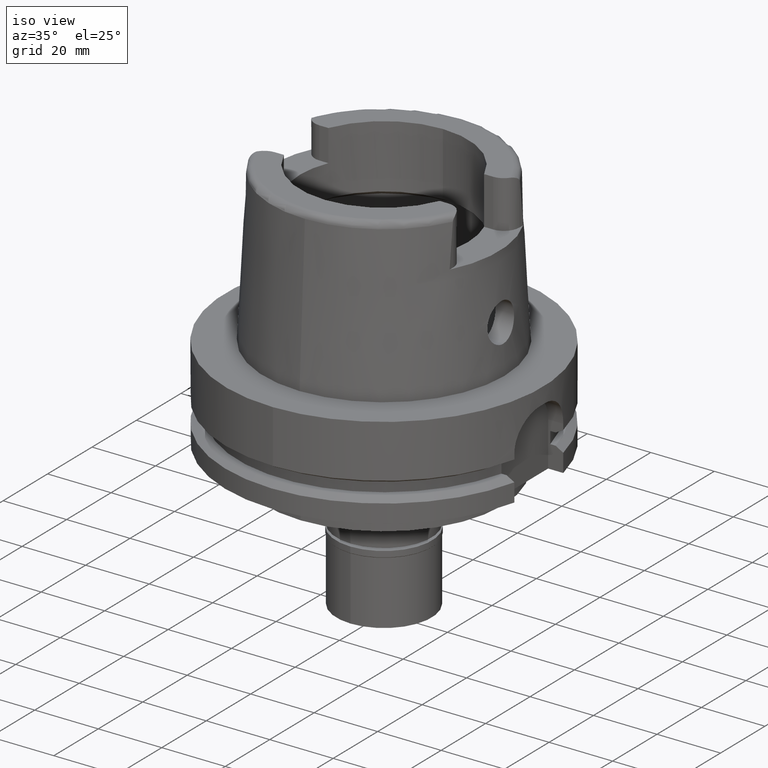
[diagram: clean part render]
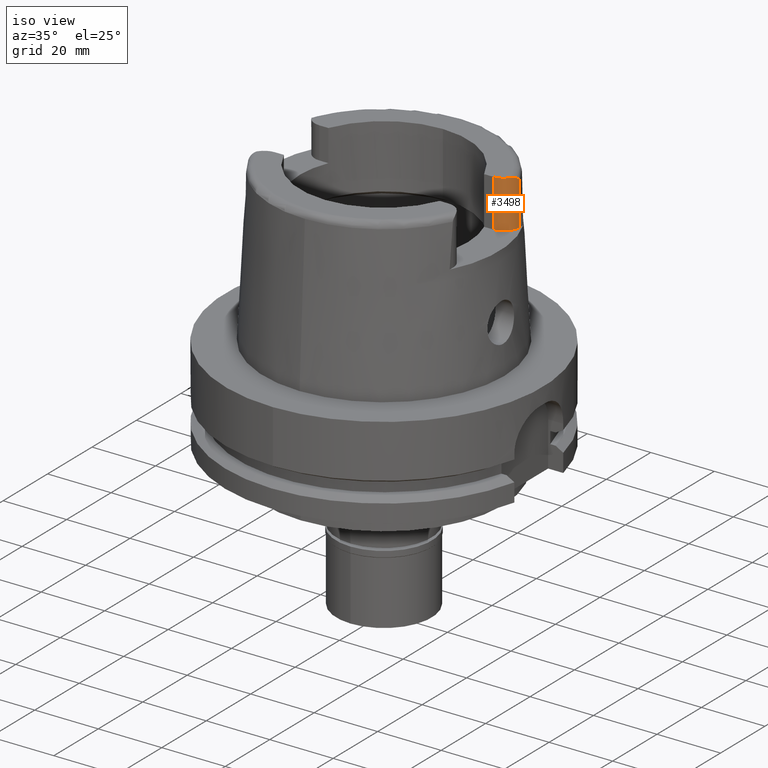
[diagram: same view with one face highlighted and labeled with its STEP entity id]
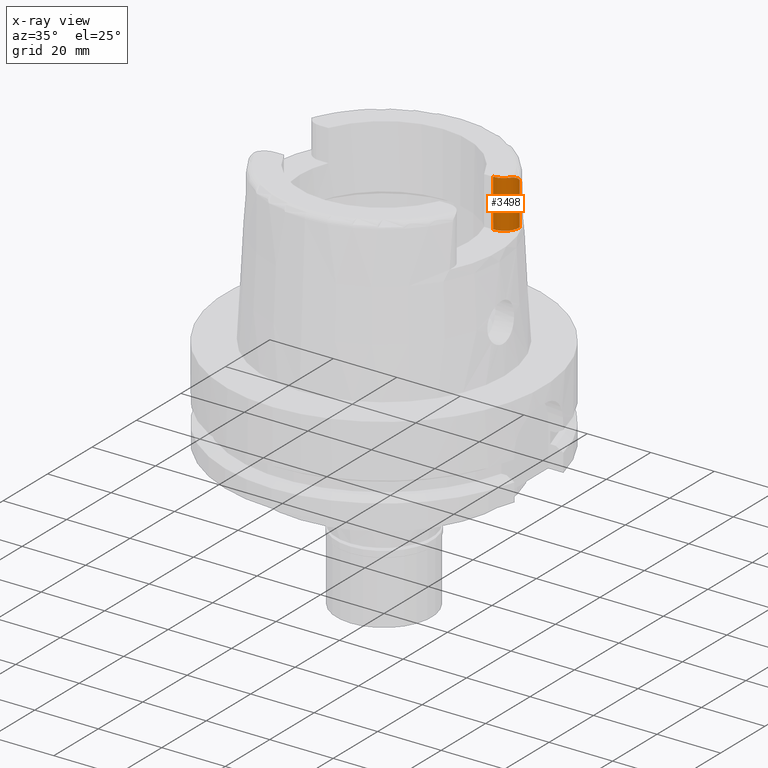
[diagram: x-ray of the same camera — body ghosted, the highlighted face saturated]
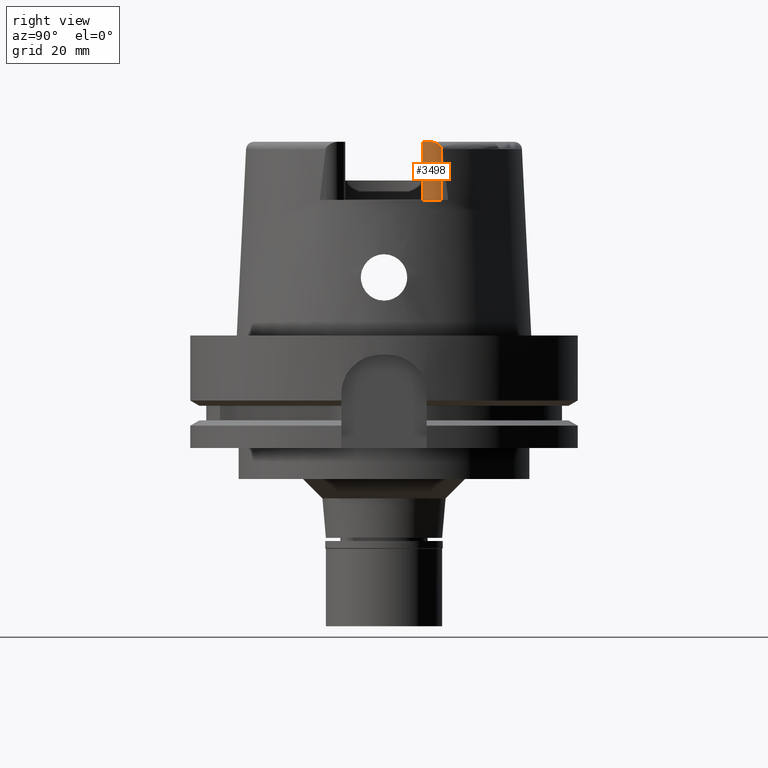
[diagram: same view with one face highlighted and labeled with its STEP entity id]
A machine part, iso view. The second image highlights one B-rep face of the part: STEP entity #3498.
The next image is the same camera in x-ray: the body ghosted, the highlighted face saturated — about 0% of this face is hidden behind the body in this view.
A second angle (right view) of the same face is appended — the face is thin or edge-on in the first view.
In plain terms, the highlighted cylindrical surface (edge-blend (fillet) strip) has radius 4.88 mm, axis along (0, 0, 1).
Its self-contained STEP definition (entity closure, byte-faithful):
#10 = CIRCLE ( 'NONE', #812, 4.879999999999999005 ) ;
#102 = CARTESIAN_POINT ( 'NONE',  ( 32.22073197824234825, 14.34663102799839862, 49.10059584251776954 ) ) ;
#204 = CARTESIAN_POINT ( 'NONE',  ( 32.17996536991925893, 14.06412821586896911, 49.29925825160065500 ) ) ;
#239 = CARTESIAN_POINT ( 'NONE',  ( 31.52202340203878705, 12.30932364368244691, 50.00000000000000000 ) ) ;
#261 = CARTESIAN_POINT ( 'NONE',  ( 31.83934535690826451, 12.92899800443668923, 49.84818950745972899 ) ) ;
#281 = CARTESIAN_POINT ( 'NONE',  ( 32.25000000000000000, 14.89000000000000057, 35.00000000000000000 ) ) ;
#366 = CIRCLE ( 'NONE', #464, 4.880000000000001670 ) ;
#464 = AXIS2_PLACEMENT_3D ( 'NONE', #3365, #5110, #1228 ) ;
#500 = VERTEX_POINT ( 'NONE', #4302 ) ;
#595 = CYLINDRICAL_SURFACE ( 'NONE', #1133, 4.880000000000002558 ) ;
#624 = DIRECTION ( 'NONE',  ( 2.098162679624000168E-14, 0.0000000000000000000, -1.000000000000000000 ) ) ;
#636 = ORIENTED_EDGE ( 'NONE', *, *, #3459, .F. ) ;
#637 = CARTESIAN_POINT ( 'NONE',  ( 32.24918104296722987, 14.77414154311812489, 48.70183324870226471 ) ) ;
#774 = CARTESIAN_POINT ( 'NONE',  ( 31.93099837877237590, 13.15273983748169329, 49.76863317394997921 ) ) ;
#812 = AXIS2_PLACEMENT_3D ( 'NONE', #2272, #5303, #942 ) ;
#836 = VERTEX_POINT ( 'NONE', #3530 ) ;
#914 = EDGE_CURVE ( 'NONE', #500, #3971, #3218, .T. ) ;
#942 = DIRECTION ( 'NONE',  ( 0.0000000000000000000, -1.000000000000000000, 0.0000000000000000000 ) ) ;
#1008 = CARTESIAN_POINT ( 'NONE',  ( 32.12008405835115354, 13.77144351166837666, 49.47521879214509255 ) ) ;
#1086 = CARTESIAN_POINT ( 'NONE',  ( 32.16941230172443511, 14.00460540661360120, 49.33743941536270938 ) ) ;
#1133 = AXIS2_PLACEMENT_3D ( 'NONE', #4846, #4036, #1808 ) ;
#1170 = CARTESIAN_POINT ( 'NONE',  ( 31.67568229352726306, 12.57174032473989911, 49.95662557355992561 ) ) ;
#1212 = VECTOR ( 'NONE', #624, 1000.000000000000000 ) ;
#1228 = DIRECTION ( 'NONE',  ( 0.8163632566568778115, -0.5775387720149849358, 0.0000000000000000000 ) ) ;
#1808 = DIRECTION ( 'NONE',  ( 1.000000000000000000, 0.0000000000000000000, 0.0000000000000000000 ) ) ;
#1824 = CARTESIAN_POINT ( 'NONE',  ( 32.15128516016157079, 13.91292133161952904, 49.39341839596030326 ) ) ;
#1834 = LINE ( 'NONE', #3158, #2396 ) ;
#1854 = CARTESIAN_POINT ( 'NONE',  ( 32.23895775506618833, 14.56122415943860027, 48.91730878227249235 ) ) ;
#1972 = ORIENTED_EDGE ( 'NONE', *, *, #4973, .T. ) ;
#2053 = CARTESIAN_POINT ( 'NONE',  ( 32.07996662474188554, 13.60353216533802723, 49.56830449580417053 ) ) ;
#2077 = CARTESIAN_POINT ( 'NONE',  ( 32.03608607600111213, 13.45223189073393222, 49.64253662309140935 ) ) ;
#2272 = CARTESIAN_POINT ( 'NONE',  ( 27.36999999999999744, 14.89000000000000057, 35.00000000000000000 ) ) ;
#2277 = CARTESIAN_POINT ( 'NONE',  ( 32.24294074546661903, 14.62425352872380913, 48.85843066340613206 ) ) ;
#2357 = CARTESIAN_POINT ( 'NONE',  ( 32.23670036792930205, 14.52873866628639199, 48.94676985432744232 ) ) ;
#2385 = CARTESIAN_POINT ( 'NONE',  ( 32.23113818881066095, 14.46116576704210033, 49.00499248621228787 ) ) ;
#2396 = VECTOR ( 'NONE', #4785, 1000.000000000000000 ) ;
#2756 = CARTESIAN_POINT ( 'NONE',  ( 32.20762153862474975, 14.23766411748314020, 49.18212923022363725 ) ) ;
#2950 = CARTESIAN_POINT ( 'NONE',  ( 31.95871334114621476, 13.22735332257414953, 49.73897301154498507 ) ) ;
#3151 = ORIENTED_EDGE ( 'NONE', *, *, #914, .F. ) ;
#3158 = CARTESIAN_POINT ( 'NONE',  ( 27.36999999999999744, 10.00999999999999979, 35.00000000000000000 ) ) ;
#3173 = CARTESIAN_POINT ( 'NONE',  ( 32.24488857474796788, 14.66368364660919710, 48.81923728448659006 ) ) ;
#3218 = LINE ( 'NONE', #5011, #1212 ) ;
#3289 = VERTEX_POINT ( 'NONE', #3390 ) ;
#3312 = CARTESIAN_POINT ( 'NONE',  ( 31.35385269249000473, 12.07161079256999869, 50.00000000000000000 ) ) ;
#3365 = CARTESIAN_POINT ( 'NONE',  ( 27.36999999999999744, 14.89000000000000057, 50.00000000000000000 ) ) ;
#3390 = CARTESIAN_POINT ( 'NONE',  ( 31.35385269249000473, 12.07161079256999869, 50.00000000000000000 ) ) ;
#3449 = B_SPLINE_CURVE_WITH_KNOTS ( 'NONE', 3,
 ( #4510, #4887, #637, #3173, #2277, #1854, #2357, #4968, #4076, #2385, #102, #2756, #204, #1086, #1824, #3541, #3576, #5309, #1008, #5496, #2053, #2077, #2950, #774, #4681, #261, #1170, #239, #3312 ),
 .UNSPECIFIED., .F., .F.,
 ( 4, 2, 2, 1, 2, 2, 2, 2, 1, 1, 2, 2, 2, 2, 2, 4 ),
 ( 0.0000000000000000000, 0.1249999999999960032, 0.1874999999999910627, 0.2187499999999878986, 0.2343749999999878431, 0.2499999999999877875, 0.3749999999999910072, 0.4374999999999919509, 0.4687499999999915068, 0.4843749999999921174, 0.4921874999999918399, 0.4999999999999915623, 0.6249999999999955591, 0.6874999999999965583, 0.7499999999999975575, 1.000000000000000000 ),
 .UNSPECIFIED. ) ;
#3459 = EDGE_CURVE ( 'NONE', #836, #4746, #1834, .T. ) ;
#3498 = ADVANCED_FACE ( 'NONE', ( #4815 ), #595, .T. ) ;
#3530 = CARTESIAN_POINT ( 'NONE',  ( 27.36999999999999744, 10.00999999999999979, 35.00000000000000000 ) ) ;
#3541 = CARTESIAN_POINT ( 'NONE',  ( 32.14164700422637111, 13.86647972674404450, 49.42108469499771672 ) ) ;
#3576 = CARTESIAN_POINT ( 'NONE',  ( 32.12933025592487724, 13.81127851622978042, 49.45279645916738076 ) ) ;
#3628 = ORIENTED_EDGE ( 'NONE', *, *, #3889, .T. ) ;
#3775 = EDGE_CURVE ( 'NONE', #500, #3289, #3449, .T. ) ;
#3889 = EDGE_CURVE ( 'NONE', #3289, #4746, #366, .T. ) ;
#3971 = VERTEX_POINT ( 'NONE', #281 ) ;
#4036 = DIRECTION ( 'NONE',  ( 0.0000000000000000000, 0.0000000000000000000, 1.000000000000000000 ) ) ;
#4076 = CARTESIAN_POINT ( 'NONE',  ( 32.23206681528385786, 14.47186270654503559, 48.99593401018076833 ) ) ;
#4302 = CARTESIAN_POINT ( 'NONE',  ( 32.25000000000000000, 14.89000000000000057, 48.54599893821999501 ) ) ;
#4357 = ORIENTED_EDGE ( 'NONE', *, *, #3775, .T. ) ;
#4510 = CARTESIAN_POINT ( 'NONE',  ( 32.25000000000000000, 14.89000000000000057, 48.54599893821999501 ) ) ;
#4681 = CARTESIAN_POINT ( 'NONE',  ( 31.87170458715581134, 13.00441391248832979, 49.82298289793417467 ) ) ;
#4740 = CARTESIAN_POINT ( 'NONE',  ( 27.36999999999999744, 10.00999999999999979, 50.00000000000000000 ) ) ;
#4746 = VERTEX_POINT ( 'NONE', #4740 ) ;
#4785 = DIRECTION ( 'NONE',  ( 0.0000000000000000000, 0.0000000000000000000, 1.000000000000000000 ) ) ;
#4803 = EDGE_LOOP ( 'NONE', ( #636, #1972, #3151, #4357, #3628 ) ) ;
#4815 = FACE_OUTER_BOUND ( 'NONE', #4803, .T. ) ;
#4846 = CARTESIAN_POINT ( 'NONE',  ( 27.36999999999999744, 14.89000000000000057, 50.00000000000000000 ) ) ;
#4887 = CARTESIAN_POINT ( 'NONE',  ( 32.24999999999999289, 14.83733103951784749, 48.62379869281165412 ) ) ;
#4968 = CARTESIAN_POINT ( 'NONE',  ( 32.23398537942118480, 14.49480543875262661, 48.97626394531509675 ) ) ;
#4973 = EDGE_CURVE ( 'NONE', #836, #3971, #10, .T. ) ;
#5011 = CARTESIAN_POINT ( 'NONE',  ( 32.25000000000000000, 14.89000000000000057, 48.54599893821999501 ) ) ;
#5110 = DIRECTION ( 'NONE',  ( 0.0000000000000000000, 0.0000000000000000000, -1.000000000000000000 ) ) ;
#5303 = DIRECTION ( 'NONE',  ( 0.0000000000000000000, 0.0000000000000000000, 1.000000000000000000 ) ) ;
#5309 = CARTESIAN_POINT ( 'NONE',  ( 32.12381462593459247, 13.78740593088808097, 49.46626601851706084 ) ) ;
#5496 = CARTESIAN_POINT ( 'NONE',  ( 32.11854200406919091, 13.76490263093765165, 49.47887033380673216 ) ) ;